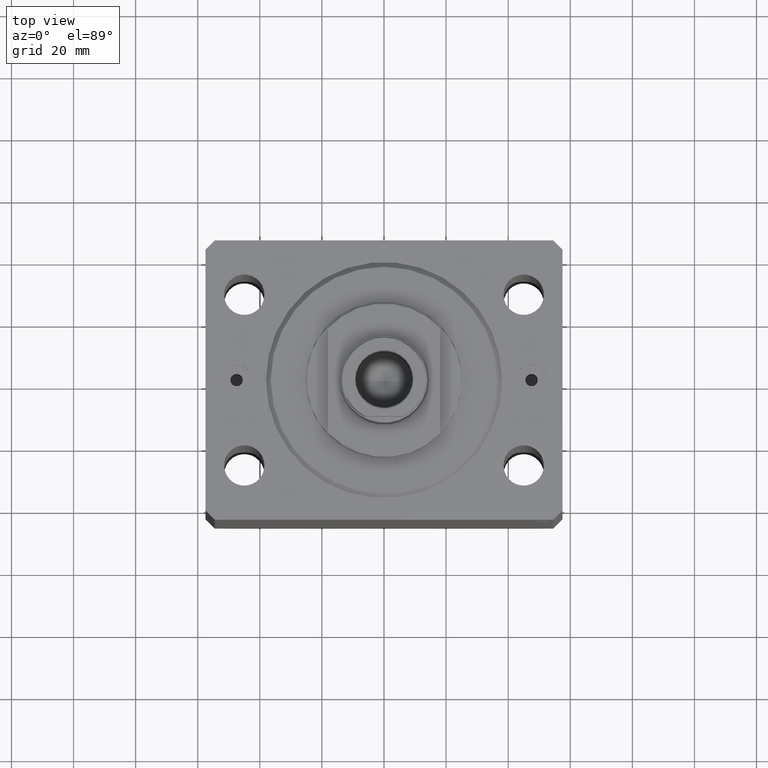
[diagram: clean part render]
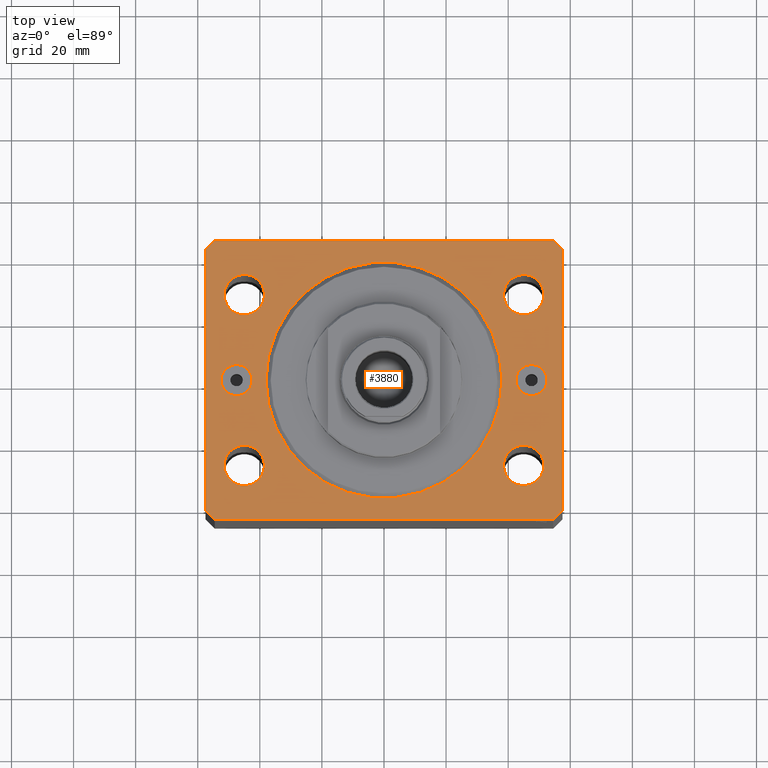
[diagram: same view with one face highlighted and labeled with its STEP entity id]
A machine part, top view. The second image highlights one B-rep face of the part: STEP entity #3880.
In plain terms, the highlighted planar face has unit normal (0, 0, 1).
Its self-contained STEP definition (entity closure, byte-faithful):
#222 = VERTEX_POINT ( 'NONE', #17843 ) ;
#291 = LINE ( 'NONE', #727, #36609 ) ;
#623 = EDGE_CURVE ( 'NONE', #21661, #26997, #7111, .T. ) ;
#701 = VERTEX_POINT ( 'NONE', #33091 ) ;
#727 = CARTESIAN_POINT ( 'NONE',  ( 54.50000000000059686, 45.00000000000002842, 0.000000000000000000 ) ) ;
#755 = DIRECTION ( 'NONE',  ( -0.7071067811865369146, 0.7071067811865581199, 0.000000000000000000 ) ) ;
#781 = VERTEX_POINT ( 'NONE', #13494 ) ;
#850 = AXIS2_PLACEMENT_3D ( 'NONE', #10629, #38287, #961 ) ;
#948 = VECTOR ( 'NONE', #35014, 1000.000000000000000 ) ;
#961 = DIRECTION ( 'NONE',  ( 1.000000000000000000, 0.000000000000000000, 0.000000000000000000 ) ) ;
#978 = CARTESIAN_POINT ( 'NONE',  ( 44.99999999999998579, -27.50000000000000355, 0.000000000000000000 ) ) ;
#1044 = AXIS2_PLACEMENT_3D ( 'NONE', #40981, #17771, #31501 ) ;
#1418 = CARTESIAN_POINT ( 'NONE',  ( -51.50000000000000000, 27.49999999999999645, 0.000000000000000000 ) ) ;
#1787 = CARTESIAN_POINT ( 'NONE',  ( 38.00000000000000000, 0.000000000000000000, 0.000000000000000000 ) ) ;
#1819 = DIRECTION ( 'NONE',  ( 0.000000000000000000, 0.000000000000000000, 1.000000000000000000 ) ) ;
#2185 = EDGE_LOOP ( 'NONE', ( #28729, #31278 ) ) ;
#2368 = LINE ( 'NONE', #32952, #21023 ) ;
#2848 = EDGE_LOOP ( 'NONE', ( #15003, #31893 ) ) ;
#3213 = ORIENTED_EDGE ( 'NONE', *, *, #27245, .F. ) ;
#3229 = DIRECTION ( 'NONE',  ( 0.000000000000000000, 0.000000000000000000, 1.000000000000000000 ) ) ;
#3342 = DIRECTION ( 'NONE',  ( 6.443258625056715108E-15, 1.000000000000000000, 0.000000000000000000 ) ) ;
#3507 = CIRCLE ( 'NONE', #42997, 6.499999999999999112 ) ;
#3635 = CIRCLE ( 'NONE', #4338, 6.499999999999999112 ) ;
#3642 = CARTESIAN_POINT ( 'NONE',  ( -57.50000000000000711, -42.00000000000000711, 0.000000000000000000 ) ) ;
#3880 = ADVANCED_FACE ( 'NONE', ( #19314, #15283, #8550, #4726, #35987, #22027, #19098, #42519 ), #11700, .T. ) ;
#4338 = AXIS2_PLACEMENT_3D ( 'NONE', #27715, #3229, #7256 ) ;
#4357 = CARTESIAN_POINT ( 'NONE',  ( 54.50000000000059686, 45.00000000000002842, 0.000000000000000000 ) ) ;
#4396 = VERTEX_POINT ( 'NONE', #1787 ) ;
#4534 = AXIS2_PLACEMENT_3D ( 'NONE', #16733, #13364, #27090 ) ;
#4726 = FACE_BOUND ( 'NONE', #2185, .T. ) ;
#4750 = ORIENTED_EDGE ( 'NONE', *, *, #36500, .F. ) ;
#4968 = ORIENTED_EDGE ( 'NONE', *, *, #11857, .F. ) ;
#5377 = LINE ( 'NONE', #37690, #42320 ) ;
#5415 = CARTESIAN_POINT ( 'NONE',  ( 0.000000000000000000, 0.000000000000000000, 0.000000000000000000 ) ) ;
#5608 = DIRECTION ( 'NONE',  ( 1.000000000000000000, 0.000000000000000000, -0.000000000000000000 ) ) ;
#5717 = AXIS2_PLACEMENT_3D ( 'NONE', #25351, #8040, #35470 ) ;
#5848 = ORIENTED_EDGE ( 'NONE', *, *, #8976, .T. ) ;
#5867 = VERTEX_POINT ( 'NONE', #8436 ) ;
#6300 = VERTEX_POINT ( 'NONE', #13018 ) ;
#6361 = VERTEX_POINT ( 'NONE', #16168 ) ;
#6402 = VERTEX_POINT ( 'NONE', #26519 ) ;
#7082 = ORIENTED_EDGE ( 'NONE', *, *, #40319, .F. ) ;
#7111 = CIRCLE ( 'NONE', #21469, 4.999999999999997335 ) ;
#7256 = DIRECTION ( 'NONE',  ( 1.000000000000000000, 0.000000000000000000, 0.000000000000000000 ) ) ;
#7457 = ORIENTED_EDGE ( 'NONE', *, *, #19595, .F. ) ;
#7742 = CARTESIAN_POINT ( 'NONE',  ( -54.50000000000000711, -45.00000000000000000, 0.000000000000000000 ) ) ;
#7766 = DIRECTION ( 'NONE',  ( 1.000000000000000000, 0.000000000000000000, 0.000000000000000000 ) ) ;
#8017 = EDGE_CURVE ( 'NONE', #26997, #21661, #38182, .T. ) ;
#8040 = DIRECTION ( 'NONE',  ( 0.000000000000000000, 0.000000000000000000, 1.000000000000000000 ) ) ;
#8142 = AXIS2_PLACEMENT_3D ( 'NONE', #978, #41455, #31333 ) ;
#8200 = CIRCLE ( 'NONE', #28282, 4.999999999999997335 ) ;
#8436 = CARTESIAN_POINT ( 'NONE',  ( -52.50000000000000000, 6.123233995736762338E-16, 0.000000000000000000 ) ) ;
#8550 = FACE_BOUND ( 'NONE', #42549, .T. ) ;
#8632 = DIRECTION ( 'NONE',  ( 1.000000000000000000, 0.000000000000000000, 0.000000000000000000 ) ) ;
#8833 = CARTESIAN_POINT ( 'NONE',  ( -54.49999999999999289, 45.00000000000000000, 0.000000000000000000 ) ) ;
#8976 = EDGE_CURVE ( 'NONE', #32155, #6402, #25916, .T. ) ;
#9329 = VERTEX_POINT ( 'NONE', #23811 ) ;
#9585 = CIRCLE ( 'NONE', #19643, 6.499999999999999112 ) ;
#10460 = ORIENTED_EDGE ( 'NONE', *, *, #29689, .F. ) ;
#10505 = DIRECTION ( 'NONE',  ( 1.000000000000000000, 0.000000000000000000, 0.000000000000000000 ) ) ;
#10629 = CARTESIAN_POINT ( 'NONE',  ( 47.50000000000000000, 0.000000000000000000, 0.000000000000000000 ) ) ;
#11090 = EDGE_CURVE ( 'NONE', #701, #16615, #2368, .T. ) ;
#11171 = LINE ( 'NONE', #37735, #948 ) ;
#11186 = ORIENTED_EDGE ( 'NONE', *, *, #11090, .T. ) ;
#11450 = EDGE_CURVE ( 'NONE', #41542, #38963, #16920, .T. ) ;
#11511 = CARTESIAN_POINT ( 'NONE',  ( 47.50000000000000000, 0.000000000000000000, 0.000000000000000000 ) ) ;
#11537 = AXIS2_PLACEMENT_3D ( 'NONE', #42740, #35541, #5608 ) ;
#11645 = EDGE_LOOP ( 'NONE', ( #4968, #10460 ) ) ;
#11700 = PLANE ( 'NONE',  #11537 ) ;
#11824 = CIRCLE ( 'NONE', #13235, 6.499999999999999112 ) ;
#11857 = EDGE_CURVE ( 'NONE', #40133, #31368, #34722, .T. ) ;
#12538 = DIRECTION ( 'NONE',  ( 1.000000000000000000, 0.000000000000000000, 0.000000000000000000 ) ) ;
#12673 = EDGE_CURVE ( 'NONE', #38963, #701, #11171, .T. ) ;
#13018 = CARTESIAN_POINT ( 'NONE',  ( 51.50000000000000000, 27.49999999999999289, 0.000000000000000000 ) ) ;
#13235 = AXIS2_PLACEMENT_3D ( 'NONE', #15806, #42812, #8632 ) ;
#13364 = DIRECTION ( 'NONE',  ( 0.000000000000000000, 0.000000000000000000, 1.000000000000000000 ) ) ;
#13494 = CARTESIAN_POINT ( 'NONE',  ( 38.50000000000000000, 27.49999999999999289, 0.000000000000000000 ) ) ;
#13608 = EDGE_LOOP ( 'NONE', ( #23434, #7082 ) ) ;
#14423 = DIRECTION ( 'NONE',  ( -1.000000000000000000, -2.546383084002638829E-16, 0.000000000000000000 ) ) ;
#15003 = ORIENTED_EDGE ( 'NONE', *, *, #16014, .F. ) ;
#15283 = FACE_BOUND ( 'NONE', #11645, .T. ) ;
#15461 = CARTESIAN_POINT ( 'NONE',  ( -38.49999999999998579, -27.50000000000000355, 0.000000000000000000 ) ) ;
#15536 = DIRECTION ( 'NONE',  ( 1.000000000000000000, 0.000000000000000000, 0.000000000000000000 ) ) ;
#15640 = ORIENTED_EDGE ( 'NONE', *, *, #31400, .T. ) ;
#15671 = ORIENTED_EDGE ( 'NONE', *, *, #11450, .T. ) ;
#15806 = CARTESIAN_POINT ( 'NONE',  ( -44.99999999999998579, -27.50000000000000355, 0.000000000000000000 ) ) ;
#15979 = ORIENTED_EDGE ( 'NONE', *, *, #17873, .F. ) ;
#16014 = EDGE_CURVE ( 'NONE', #4396, #29699, #34083, .T. ) ;
#16064 = EDGE_CURVE ( 'NONE', #6361, #9329, #17462, .T. ) ;
#16168 = CARTESIAN_POINT ( 'NONE',  ( 38.49999999999998579, -27.50000000000000355, 0.000000000000000000 ) ) ;
#16414 = EDGE_LOOP ( 'NONE', ( #30430, #39088 ) ) ;
#16615 = VERTEX_POINT ( 'NONE', #42414 ) ;
#16635 = ORIENTED_EDGE ( 'NONE', *, *, #42758, .T. ) ;
#16733 = CARTESIAN_POINT ( 'NONE',  ( 0.000000000000000000, 0.000000000000000000, 0.000000000000000000 ) ) ;
#16920 = LINE ( 'NONE', #3642, #36838 ) ;
#16928 = CARTESIAN_POINT ( 'NONE',  ( -38.00000000000000000, 4.653657836759941941E-15, 0.000000000000000000 ) ) ;
#17190 = CARTESIAN_POINT ( 'NONE',  ( 52.50000000000000000, 0.000000000000000000, 0.000000000000000000 ) ) ;
#17462 = CIRCLE ( 'NONE', #8142, 6.499999999999999112 ) ;
#17771 = DIRECTION ( 'NONE',  ( 0.000000000000000000, 0.000000000000000000, 1.000000000000000000 ) ) ;
#17843 = CARTESIAN_POINT ( 'NONE',  ( 57.50000000000055422, 41.99999999999997868, 0.000000000000000000 ) ) ;
#17873 = EDGE_CURVE ( 'NONE', #781, #6300, #9585, .T. ) ;
#18002 = CARTESIAN_POINT ( 'NONE',  ( -57.50000000000000711, -42.00000000000000711, 0.000000000000000000 ) ) ;
#18449 = VERTEX_POINT ( 'NONE', #25205 ) ;
#18723 = VERTEX_POINT ( 'NONE', #15461 ) ;
#19098 = FACE_BOUND ( 'NONE', #44172, .T. ) ;
#19314 = FACE_OUTER_BOUND ( 'NONE', #36022, .T. ) ;
#19387 = CIRCLE ( 'NONE', #31590, 38.00000000000000000 ) ;
#19595 = EDGE_CURVE ( 'NONE', #5867, #25728, #8200, .T. ) ;
#19643 = AXIS2_PLACEMENT_3D ( 'NONE', #43963, #36986, #22802 ) ;
#20107 = EDGE_CURVE ( 'NONE', #9329, #6361, #23310, .T. ) ;
#20323 = AXIS2_PLACEMENT_3D ( 'NONE', #40490, #26778, #10505 ) ;
#20460 = CARTESIAN_POINT ( 'NONE',  ( -47.50000000000000000, 0.000000000000000000, 0.000000000000000000 ) ) ;
#20595 = VERTEX_POINT ( 'NONE', #4357 ) ;
#20652 = EDGE_CURVE ( 'NONE', #18723, #18449, #11824, .T. ) ;
#21023 = VECTOR ( 'NONE', #43750, 1000.000000000000000 ) ;
#21469 = AXIS2_PLACEMENT_3D ( 'NONE', #11511, #35797, #15536 ) ;
#21661 = VERTEX_POINT ( 'NONE', #17190 ) ;
#22027 = FACE_BOUND ( 'NONE', #2848, .T. ) ;
#22268 = DIRECTION ( 'NONE',  ( 1.000000000000000000, 0.000000000000000000, 0.000000000000000000 ) ) ;
#22802 = DIRECTION ( 'NONE',  ( 1.000000000000000000, 0.000000000000000000, 0.000000000000000000 ) ) ;
#23310 = CIRCLE ( 'NONE', #1044, 6.499999999999999112 ) ;
#23434 = ORIENTED_EDGE ( 'NONE', *, *, #20652, .F. ) ;
#23671 = VECTOR ( 'NONE', #3342, 1000.000000000000000 ) ;
#23811 = CARTESIAN_POINT ( 'NONE',  ( 51.49999999999998579, -27.50000000000000355, 0.000000000000000000 ) ) ;
#23967 = ORIENTED_EDGE ( 'NONE', *, *, #27123, .T. ) ;
#24320 = DIRECTION ( 'NONE',  ( 0.7071067811865491270, -0.7071067811865459074, 0.000000000000000000 ) ) ;
#24925 = CARTESIAN_POINT ( 'NONE',  ( -54.49999999999999289, 45.00000000000000000, 0.000000000000000000 ) ) ;
#25074 = DIRECTION ( 'NONE',  ( 0.000000000000000000, 0.000000000000000000, 1.000000000000000000 ) ) ;
#25110 = CIRCLE ( 'NONE', #5717, 6.499999999999999112 ) ;
#25205 = CARTESIAN_POINT ( 'NONE',  ( -51.49999999999998579, -27.50000000000000355, 0.000000000000000000 ) ) ;
#25351 = CARTESIAN_POINT ( 'NONE',  ( 45.00000000000000000, 27.49999999999999289, 0.000000000000000000 ) ) ;
#25728 = VERTEX_POINT ( 'NONE', #25893 ) ;
#25893 = CARTESIAN_POINT ( 'NONE',  ( -42.50000000000000000, 0.000000000000000000, 0.000000000000000000 ) ) ;
#25916 = LINE ( 'NONE', #8833, #32504 ) ;
#26259 = ORIENTED_EDGE ( 'NONE', *, *, #26446, .T. ) ;
#26446 = EDGE_CURVE ( 'NONE', #20595, #32155, #291, .T. ) ;
#26519 = CARTESIAN_POINT ( 'NONE',  ( -57.49999999999998579, 42.00000000000000711, 0.000000000000000000 ) ) ;
#26778 = DIRECTION ( 'NONE',  ( 0.000000000000000000, 0.000000000000000000, 1.000000000000000000 ) ) ;
#26997 = VERTEX_POINT ( 'NONE', #39784 ) ;
#27090 = DIRECTION ( 'NONE',  ( 1.000000000000000000, 0.000000000000000000, 0.000000000000000000 ) ) ;
#27123 = EDGE_CURVE ( 'NONE', #16615, #222, #37294, .T. ) ;
#27245 = EDGE_CURVE ( 'NONE', #6300, #781, #25110, .T. ) ;
#27715 = CARTESIAN_POINT ( 'NONE',  ( -45.00000000000000000, 27.49999999999999645, 0.000000000000000000 ) ) ;
#28077 = EDGE_CURVE ( 'NONE', #29699, #4396, #19387, .T. ) ;
#28146 = ORIENTED_EDGE ( 'NONE', *, *, #12673, .T. ) ;
#28282 = AXIS2_PLACEMENT_3D ( 'NONE', #36395, #33010, #12538 ) ;
#28729 = ORIENTED_EDGE ( 'NONE', *, *, #20107, .F. ) ;
#29689 = EDGE_CURVE ( 'NONE', #31368, #40133, #3635, .T. ) ;
#29699 = VERTEX_POINT ( 'NONE', #16928 ) ;
#30430 = ORIENTED_EDGE ( 'NONE', *, *, #623, .T. ) ;
#31278 = ORIENTED_EDGE ( 'NONE', *, *, #16064, .F. ) ;
#31333 = DIRECTION ( 'NONE',  ( 1.000000000000000000, 0.000000000000000000, 0.000000000000000000 ) ) ;
#31368 = VERTEX_POINT ( 'NONE', #1418 ) ;
#31400 = EDGE_CURVE ( 'NONE', #222, #20595, #42125, .T. ) ;
#31501 = DIRECTION ( 'NONE',  ( 1.000000000000000000, 0.000000000000000000, 0.000000000000000000 ) ) ;
#31585 = VECTOR ( 'NONE', #755, 1000.000000000000000 ) ;
#31590 = AXIS2_PLACEMENT_3D ( 'NONE', #5415, #1819, #22268 ) ;
#31780 = CARTESIAN_POINT ( 'NONE',  ( 57.50000000000055422, 41.99999999999997868, 0.000000000000000000 ) ) ;
#31797 = AXIS2_PLACEMENT_3D ( 'NONE', #20460, #41162, #34196 ) ;
#31893 = ORIENTED_EDGE ( 'NONE', *, *, #28077, .F. ) ;
#32155 = VERTEX_POINT ( 'NONE', #24925 ) ;
#32504 = VECTOR ( 'NONE', #32669, 1000.000000000000000 ) ;
#32669 = DIRECTION ( 'NONE',  ( -0.7071067811865483499, -0.7071067811865466846, 0.000000000000000000 ) ) ;
#32952 = CARTESIAN_POINT ( 'NONE',  ( 54.50000000000000711, -44.99999999999998579, 0.000000000000000000 ) ) ;
#33010 = DIRECTION ( 'NONE',  ( 0.000000000000000000, 0.000000000000000000, 1.000000000000000000 ) ) ;
#33091 = CARTESIAN_POINT ( 'NONE',  ( 54.50000000000000711, -44.99999999999998579, 0.000000000000000000 ) ) ;
#33998 = CIRCLE ( 'NONE', #31797, 4.999999999999997335 ) ;
#34083 = CIRCLE ( 'NONE', #4534, 38.00000000000000000 ) ;
#34196 = DIRECTION ( 'NONE',  ( 1.000000000000000000, 0.000000000000000000, 0.000000000000000000 ) ) ;
#34311 = DIRECTION ( 'NONE',  ( -2.478176394252581141E-16, -1.000000000000000000, 0.000000000000000000 ) ) ;
#34722 = CIRCLE ( 'NONE', #20323, 6.499999999999999112 ) ;
#34771 = CARTESIAN_POINT ( 'NONE',  ( -38.50000000000000000, 27.49999999999999645, 0.000000000000000000 ) ) ;
#35014 = DIRECTION ( 'NONE',  ( 1.000000000000000000, 1.273191542001326317E-16, 0.000000000000000000 ) ) ;
#35470 = DIRECTION ( 'NONE',  ( 1.000000000000000000, 0.000000000000000000, 0.000000000000000000 ) ) ;
#35541 = DIRECTION ( 'NONE',  ( 0.000000000000000000, 0.000000000000000000, 1.000000000000000000 ) ) ;
#35797 = DIRECTION ( 'NONE',  ( 0.000000000000000000, -0.000000000000000000, -1.000000000000000000 ) ) ;
#35987 = FACE_BOUND ( 'NONE', #13608, .T. ) ;
#36022 = EDGE_LOOP ( 'NONE', ( #26259, #5848, #16635, #15671, #28146, #11186, #23967, #15640 ) ) ;
#36395 = CARTESIAN_POINT ( 'NONE',  ( -47.50000000000000000, 0.000000000000000000, 0.000000000000000000 ) ) ;
#36500 = EDGE_CURVE ( 'NONE', #25728, #5867, #33998, .T. ) ;
#36609 = VECTOR ( 'NONE', #14423, 1000.000000000000000 ) ;
#36838 = VECTOR ( 'NONE', #24320, 1000.000000000000114 ) ;
#36986 = DIRECTION ( 'NONE',  ( 0.000000000000000000, 0.000000000000000000, 1.000000000000000000 ) ) ;
#37294 = LINE ( 'NONE', #38179, #23671 ) ;
#37690 = CARTESIAN_POINT ( 'NONE',  ( -57.49999999999998579, 42.00000000000000711, 0.000000000000000000 ) ) ;
#37735 = CARTESIAN_POINT ( 'NONE',  ( -54.50000000000000711, -45.00000000000000000, 0.000000000000000000 ) ) ;
#38179 = CARTESIAN_POINT ( 'NONE',  ( 57.50000000000000711, -41.99999999999998579, 0.000000000000000000 ) ) ;
#38182 = CIRCLE ( 'NONE', #850, 4.999999999999997335 ) ;
#38287 = DIRECTION ( 'NONE',  ( 0.000000000000000000, -0.000000000000000000, -1.000000000000000000 ) ) ;
#38963 = VERTEX_POINT ( 'NONE', #7742 ) ;
#39088 = ORIENTED_EDGE ( 'NONE', *, *, #8017, .T. ) ;
#39784 = CARTESIAN_POINT ( 'NONE',  ( 42.50000000000000000, 6.123233995736762338E-16, 0.000000000000000000 ) ) ;
#40133 = VERTEX_POINT ( 'NONE', #34771 ) ;
#40319 = EDGE_CURVE ( 'NONE', #18449, #18723, #3507, .T. ) ;
#40490 = CARTESIAN_POINT ( 'NONE',  ( -45.00000000000000000, 27.49999999999999645, 0.000000000000000000 ) ) ;
#40981 = CARTESIAN_POINT ( 'NONE',  ( 44.99999999999998579, -27.50000000000000355, 0.000000000000000000 ) ) ;
#41162 = DIRECTION ( 'NONE',  ( 0.000000000000000000, 0.000000000000000000, 1.000000000000000000 ) ) ;
#41455 = DIRECTION ( 'NONE',  ( 0.000000000000000000, 0.000000000000000000, 1.000000000000000000 ) ) ;
#41542 = VERTEX_POINT ( 'NONE', #18002 ) ;
#42125 = LINE ( 'NONE', #31780, #31585 ) ;
#42169 = CARTESIAN_POINT ( 'NONE',  ( -44.99999999999998579, -27.50000000000000355, 0.000000000000000000 ) ) ;
#42320 = VECTOR ( 'NONE', #34311, 1000.000000000000000 ) ;
#42414 = CARTESIAN_POINT ( 'NONE',  ( 57.50000000000000711, -41.99999999999998579, 0.000000000000000000 ) ) ;
#42519 = FACE_BOUND ( 'NONE', #16414, .T. ) ;
#42549 = EDGE_LOOP ( 'NONE', ( #3213, #15979 ) ) ;
#42740 = CARTESIAN_POINT ( 'NONE',  ( 0.000000000000000000, 0.000000000000000000, 0.000000000000000000 ) ) ;
#42758 = EDGE_CURVE ( 'NONE', #6402, #41542, #5377, .T. ) ;
#42812 = DIRECTION ( 'NONE',  ( 0.000000000000000000, 0.000000000000000000, 1.000000000000000000 ) ) ;
#42997 = AXIS2_PLACEMENT_3D ( 'NONE', #42169, #25074, #7766 ) ;
#43750 = DIRECTION ( 'NONE',  ( 0.7071067811865483499, 0.7071067811865466846, 0.000000000000000000 ) ) ;
#43963 = CARTESIAN_POINT ( 'NONE',  ( 45.00000000000000000, 27.49999999999999289, 0.000000000000000000 ) ) ;
#44172 = EDGE_LOOP ( 'NONE', ( #4750, #7457 ) ) ;